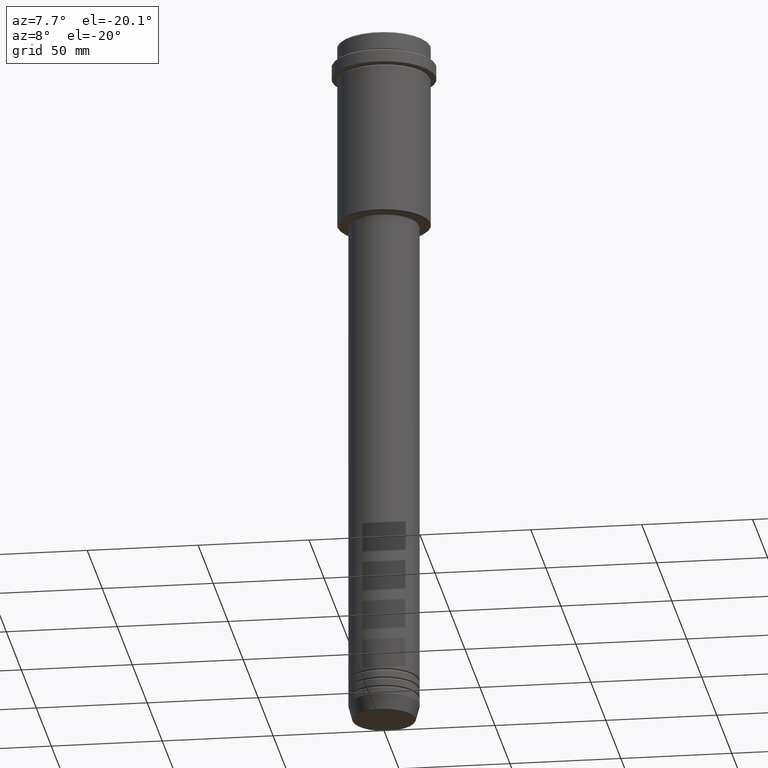
[diagram: clean part render]
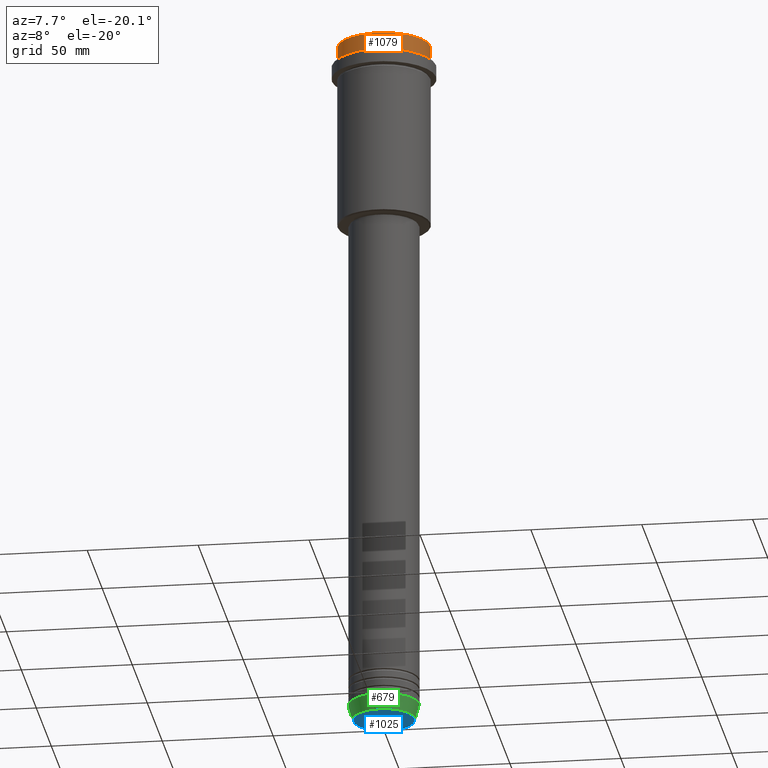
[diagram: same view with three faces highlighted in distinct colors, each labeled with its STEP entity id]
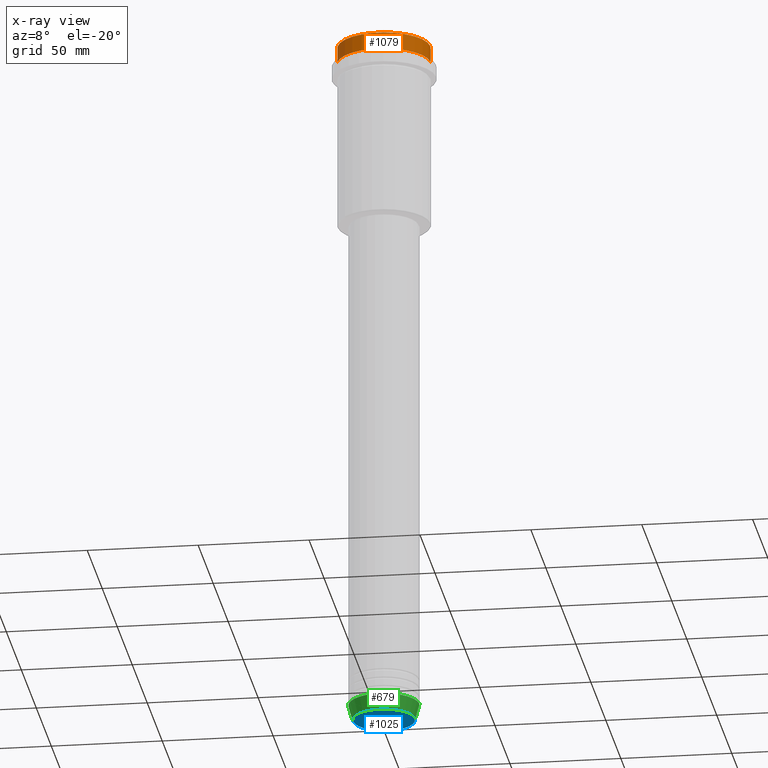
[diagram: x-ray of the same camera — body ghosted, the three highlighted faces saturated]
A machine part, auxiliary view with three faces highlighted in distinct colors.
The next image is the same camera in x-ray (body ghosted, the three faces saturated) — at least one of them is partly hidden behind the body in this view.
Their STEP definitions:

[orange] entity #1079 — the highlighted cylindrical surface (partial cylindrical patch) has radius 21 mm, axis along (-0, -0, 1).
#11 = CARTESIAN_POINT ( 'NONE',  ( -20.99999999999999645, 2.571758278209441267E-15, -0.4999999999999518718 ) ) ;
#135 = DIRECTION ( 'NONE',  ( 1.000000000000000000, 0.000000000000000000, 0.000000000000000000 ) ) ;
#182 = EDGE_CURVE ( 'NONE', #518, #1278, #851, .T. ) ;
#208 = CARTESIAN_POINT ( 'NONE',  ( 0.000000000000000000, 0.000000000000000000, 0.000000000000000000 ) ) ;
#220 = ORIENTED_EDGE ( 'NONE', *, *, #1207, .T. ) ;
#238 = CARTESIAN_POINT ( 'NONE',  ( 20.99999999999999645, 0.000000000000000000, 0.000000000000000000 ) ) ;
#246 = EDGE_CURVE ( 'NONE', #329, #1278, #1028, .T. ) ;
#290 = EDGE_CURVE ( 'NONE', #765, #329, #897, .T. ) ;
#291 = CARTESIAN_POINT ( 'NONE',  ( 0.000000000000000000, 0.000000000000000000, -0.4999999999999518718 ) ) ;
#297 = DIRECTION ( 'NONE',  ( -0.000000000000000000, -0.000000000000000000, 1.000000000000000000 ) ) ;
#317 = CARTESIAN_POINT ( 'NONE',  ( -20.99999999999999645, 2.571758278209441267E-15, -7.999999999999998224 ) ) ;
#324 = CARTESIAN_POINT ( 'NONE',  ( 0.000000000000000000, 0.000000000000000000, -7.999999999999998224 ) ) ;
#329 = VERTEX_POINT ( 'NONE', #1250 ) ;
#351 = CIRCLE ( 'NONE', #560, 20.99999999999999645 ) ;
#442 = DIRECTION ( 'NONE',  ( 0.000000000000000000, 0.000000000000000000, -1.000000000000000000 ) ) ;
#461 = EDGE_LOOP ( 'NONE', ( #578, #220, #759, #1182 ) ) ;
#518 = VERTEX_POINT ( 'NONE', #317 ) ;
#560 = AXIS2_PLACEMENT_3D ( 'NONE', #324, #1135, #135 ) ;
#578 = ORIENTED_EDGE ( 'NONE', *, *, #182, .F. ) ;
#677 = DIRECTION ( 'NONE',  ( -0.000000000000000000, -0.000000000000000000, 1.000000000000000000 ) ) ;
#756 = FACE_OUTER_BOUND ( 'NONE', #461, .T. ) ;
#759 = ORIENTED_EDGE ( 'NONE', *, *, #290, .T. ) ;
#765 = VERTEX_POINT ( 'NONE', #1209 ) ;
#769 = DIRECTION ( 'NONE',  ( 1.000000000000000000, 0.000000000000000000, 0.000000000000000000 ) ) ;
#851 = LINE ( 'NONE', #1288, #1115 ) ;
#897 = LINE ( 'NONE', #238, #907 ) ;
#907 = VECTOR ( 'NONE', #677, 1000.000000000000000 ) ;
#1028 = CIRCLE ( 'NONE', #1383, 20.99999999999999645 ) ;
#1078 = AXIS2_PLACEMENT_3D ( 'NONE', #208, #1195, #1082 ) ;
#1079 = ADVANCED_FACE ( 'NONE', ( #756 ), #1103, .T. ) ;
#1082 = DIRECTION ( 'NONE',  ( 1.000000000000000000, 0.000000000000000000, 0.000000000000000000 ) ) ;
#1103 = CYLINDRICAL_SURFACE ( 'NONE', #1078, 20.99999999999999645 ) ;
#1115 = VECTOR ( 'NONE', #297, 1000.000000000000000 ) ;
#1135 = DIRECTION ( 'NONE',  ( -0.000000000000000000, -0.000000000000000000, 1.000000000000000000 ) ) ;
#1182 = ORIENTED_EDGE ( 'NONE', *, *, #246, .T. ) ;
#1195 = DIRECTION ( 'NONE',  ( -0.000000000000000000, -0.000000000000000000, 1.000000000000000000 ) ) ;
#1207 = EDGE_CURVE ( 'NONE', #518, #765, #351, .T. ) ;
#1209 = CARTESIAN_POINT ( 'NONE',  ( 20.99999999999999645, 0.000000000000000000, -7.999999999999998224 ) ) ;
#1250 = CARTESIAN_POINT ( 'NONE',  ( 20.99999999999999645, 0.000000000000000000, -0.4999999999999518718 ) ) ;
#1278 = VERTEX_POINT ( 'NONE', #11 ) ;
#1288 = CARTESIAN_POINT ( 'NONE',  ( -20.99999999999999645, 2.571758278209441267E-15, 0.000000000000000000 ) ) ;
#1383 = AXIS2_PLACEMENT_3D ( 'NONE', #291, #442, #769 ) ;

[blue] entity #1025 — the highlighted planar face has unit normal (0, -0, 1).
#34 = AXIS2_PLACEMENT_3D ( 'NONE', #408, #852, #536 ) ;
#81 = PLANE ( 'NONE',  #34 ) ;
#108 = CIRCLE ( 'NONE', #984, 13.74069215899265828 ) ;
#159 = DIRECTION ( 'NONE',  ( 1.000000000000000000, 0.000000000000000000, 0.000000000000000000 ) ) ;
#184 = DIRECTION ( 'NONE',  ( 0.000000000000000000, 0.000000000000000000, -1.000000000000000000 ) ) ;
#247 = VERTEX_POINT ( 'NONE', #1220 ) ;
#322 = ORIENTED_EDGE ( 'NONE', *, *, #369, .T. ) ;
#363 = VERTEX_POINT ( 'NONE', #498 ) ;
#369 = EDGE_CURVE ( 'NONE', #363, #247, #108, .T. ) ;
#408 = CARTESIAN_POINT ( 'NONE',  ( 0.000000000000000000, 0.000000000000000000, -320.0000000000000000 ) ) ;
#498 = CARTESIAN_POINT ( 'NONE',  ( -13.74069215899265828, 1.712322416342415986E-15, -320.0000000000000000 ) ) ;
#536 = DIRECTION ( 'NONE',  ( 1.000000000000000000, 0.000000000000000000, 0.000000000000000000 ) ) ;
#598 = CARTESIAN_POINT ( 'NONE',  ( 0.000000000000000000, 0.000000000000000000, -320.0000000000000000 ) ) ;
#638 = FACE_OUTER_BOUND ( 'NONE', #639, .T. ) ;
#639 = EDGE_LOOP ( 'NONE', ( #1413, #322 ) ) ;
#743 = DIRECTION ( 'NONE',  ( 1.000000000000000000, 0.000000000000000000, 0.000000000000000000 ) ) ;
#774 = EDGE_CURVE ( 'NONE', #247, #363, #1077, .T. ) ;
#852 = DIRECTION ( 'NONE',  ( 0.000000000000000000, -0.000000000000000000, 1.000000000000000000 ) ) ;
#984 = AXIS2_PLACEMENT_3D ( 'NONE', #598, #1257, #159 ) ;
#992 = CARTESIAN_POINT ( 'NONE',  ( 0.000000000000000000, 0.000000000000000000, -320.0000000000000000 ) ) ;
#1025 = ADVANCED_FACE ( 'NONE', ( #638 ), #81, .F. ) ;
#1077 = CIRCLE ( 'NONE', #1235, 13.74069215899265828 ) ;
#1220 = CARTESIAN_POINT ( 'NONE',  ( 13.74069215899265828, 0.000000000000000000, -320.0000000000000000 ) ) ;
#1235 = AXIS2_PLACEMENT_3D ( 'NONE', #992, #184, #743 ) ;
#1257 = DIRECTION ( 'NONE',  ( 0.000000000000000000, 0.000000000000000000, -1.000000000000000000 ) ) ;
#1413 = ORIENTED_EDGE ( 'NONE', *, *, #774, .T. ) ;

[green] entity #679 — the highlighted conical surface has half-angle 15 deg.
#41 = EDGE_CURVE ( 'NONE', #1154, #466, #156, .T. ) ;
#42 = CARTESIAN_POINT ( 'NONE',  ( -16.00000000000000000, 1.959434878635765131E-15, -313.0000000000000000 ) ) ;
#49 = CARTESIAN_POINT ( 'NONE',  ( 0.000000000000000000, 0.000000000000000000, -313.0000000000000000 ) ) ;
#101 = EDGE_CURVE ( 'NONE', #1339, #466, #465, .T. ) ;
#151 = VECTOR ( 'NONE', #1108, 1000.000000000000000 ) ;
#156 = LINE ( 'NONE', #1038, #1141 ) ;
#161 = DIRECTION ( 'NONE',  ( -0.000000000000000000, -0.000000000000000000, 1.000000000000000000 ) ) ;
#176 = CARTESIAN_POINT ( 'NONE',  ( -14.22365507213718772, 1.850665122131323337E-15, -319.6294095225512706 ) ) ;
#207 = CARTESIAN_POINT ( 'NONE',  ( 0.000000000000000000, 0.000000000000000000, -319.6294095225512706 ) ) ;
#240 = VERTEX_POINT ( 'NONE', #176 ) ;
#276 = EDGE_CURVE ( 'NONE', #240, #1154, #554, .T. ) ;
#292 = CARTESIAN_POINT ( 'NONE',  ( 14.22365507213718772, 0.000000000000000000, -319.6294095225512706 ) ) ;
#294 = DIRECTION ( 'NONE',  ( -0.000000000000000000, -0.000000000000000000, 1.000000000000000000 ) ) ;
#334 = ORIENTED_EDGE ( 'NONE', *, *, #101, .F. ) ;
#465 = CIRCLE ( 'NONE', #671, 16.00000000000000000 ) ;
#466 = VERTEX_POINT ( 'NONE', #1378 ) ;
#483 = DIRECTION ( 'NONE',  ( 1.000000000000000000, 0.000000000000000000, 0.000000000000000000 ) ) ;
#509 = ORIENTED_EDGE ( 'NONE', *, *, #41, .T. ) ;
#511 = AXIS2_PLACEMENT_3D ( 'NONE', #207, #561, #1012 ) ;
#554 = CIRCLE ( 'NONE', #511, 14.22365507213718772 ) ;
#561 = DIRECTION ( 'NONE',  ( -0.000000000000000000, -0.000000000000000000, 1.000000000000000000 ) ) ;
#655 = ORIENTED_EDGE ( 'NONE', *, *, #276, .T. ) ;
#671 = AXIS2_PLACEMENT_3D ( 'NONE', #49, #161, #874 ) ;
#679 = ADVANCED_FACE ( 'NONE', ( #1377 ), #1387, .T. ) ;
#742 = ORIENTED_EDGE ( 'NONE', *, *, #1172, .F. ) ;
#778 = CARTESIAN_POINT ( 'NONE',  ( -16.00000000000000000, 1.959434878635765131E-15, -313.0000000000000000 ) ) ;
#840 = AXIS2_PLACEMENT_3D ( 'NONE', #847, #294, #483 ) ;
#847 = CARTESIAN_POINT ( 'NONE',  ( 0.000000000000000000, 0.000000000000000000, -313.0000000000000000 ) ) ;
#874 = DIRECTION ( 'NONE',  ( 1.000000000000000000, 0.000000000000000000, 0.000000000000000000 ) ) ;
#919 = DIRECTION ( 'NONE',  ( 0.2588190451025213501, 0.000000000000000000, 0.9659258262890680902 ) ) ;
#1012 = DIRECTION ( 'NONE',  ( 1.000000000000000000, 0.000000000000000000, 0.000000000000000000 ) ) ;
#1038 = CARTESIAN_POINT ( 'NONE',  ( 16.00000000000000000, 0.000000000000000000, -313.0000000000000000 ) ) ;
#1108 = DIRECTION ( 'NONE',  ( -0.2588190451025213501, 3.169619151431772337E-17, 0.9659258262890680902 ) ) ;
#1141 = VECTOR ( 'NONE', #919, 1000.000000000000000 ) ;
#1154 = VERTEX_POINT ( 'NONE', #292 ) ;
#1172 = EDGE_CURVE ( 'NONE', #240, #1339, #1311, .T. ) ;
#1230 = EDGE_LOOP ( 'NONE', ( #742, #655, #509, #334 ) ) ;
#1311 = LINE ( 'NONE', #778, #151 ) ;
#1339 = VERTEX_POINT ( 'NONE', #42 ) ;
#1377 = FACE_OUTER_BOUND ( 'NONE', #1230, .T. ) ;
#1378 = CARTESIAN_POINT ( 'NONE',  ( 16.00000000000000000, 0.000000000000000000, -313.0000000000000000 ) ) ;
#1387 = CONICAL_SURFACE ( 'NONE', #840, 16.00000000000000000, 0.2617993877991500740 ) ;